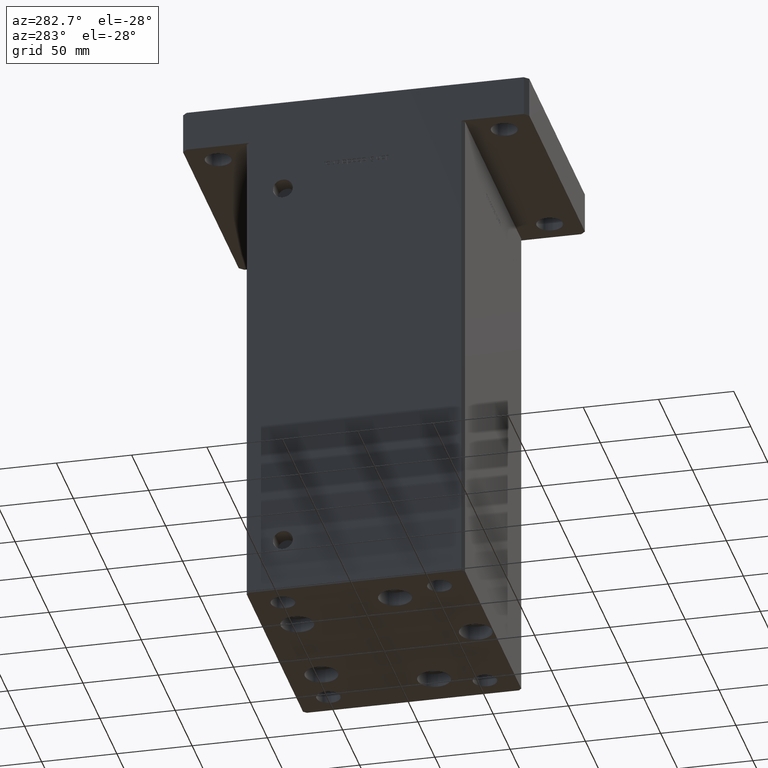
[diagram: clean part render]
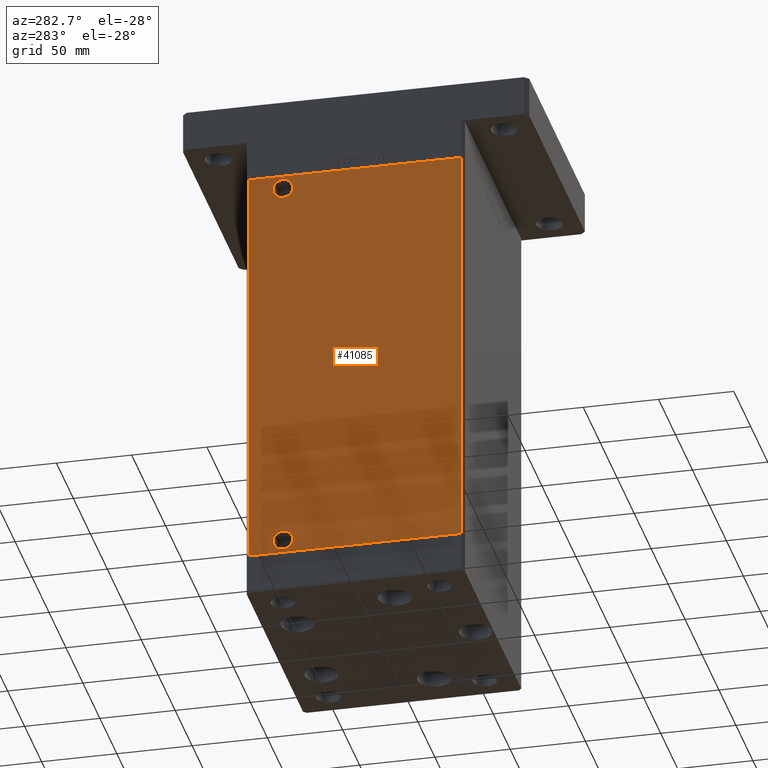
[diagram: same view with one face highlighted and labeled with its STEP entity id]
A machine part, auxiliary view. The second image highlights one B-rep face of the part: STEP entity #41085.
In plain terms, the highlighted planar face has unit normal (1, 0, 0).
Its self-contained STEP definition (entity closure, byte-faithful):
#1033 = CARTESIAN_POINT ( 'NONE',  ( -84.99999999999998579, -70.50000000000001421, 276.0000000000000000 ) ) ;
#2110 = CARTESIAN_POINT ( 'NONE',  ( -85.00000000000001421, 47.99999999999997868, 9.000000000000000000 ) ) ;
#2313 = AXIS2_PLACEMENT_3D ( 'NONE', #50869, #9428, #25958 ) ;
#2767 = CARTESIAN_POINT ( 'NONE',  ( -85.00000000000001421, 70.49999999999998579, 276.0000000000000000 ) ) ;
#4739 = EDGE_CURVE ( 'NONE', #18350, #34854, #7813, .T. ) ;
#6380 = EDGE_CURVE ( 'NONE', #25486, #42148, #25678, .T. ) ;
#6918 = CARTESIAN_POINT ( 'NONE',  ( -85.00000000000001421, 47.99999999999997868, 9.000000000000000000 ) ) ;
#7591 = CARTESIAN_POINT ( 'NONE',  ( -85.00000000000001421, 70.49999999999998579, 0.000000000000000000 ) ) ;
#7813 = CIRCLE ( 'NONE', #38098, 6.580000000000044480 ) ;
#8117 = EDGE_LOOP ( 'NONE', ( #8902, #25226 ) ) ;
#8902 = ORIENTED_EDGE ( 'NONE', *, *, #24712, .F. ) ;
#9428 = DIRECTION ( 'NONE',  ( -1.000000000000000000, -2.275047181608927644E-16, 0.000000000000000000 ) ) ;
#9489 = EDGE_CURVE ( 'NONE', #32770, #44195, #40084, .T. ) ;
#10070 = CARTESIAN_POINT ( 'NONE',  ( -85.00000000000001421, 41.41999999999993776, 267.0000000000000000 ) ) ;
#11217 = CARTESIAN_POINT ( 'NONE',  ( -84.99999999999998579, -70.50000000000001421, 0.000000000000000000 ) ) ;
#12359 = ORIENTED_EDGE ( 'NONE', *, *, #6380, .F. ) ;
#12447 = ORIENTED_EDGE ( 'NONE', *, *, #46844, .F. ) ;
#13492 = VERTEX_POINT ( 'NONE', #14404 ) ;
#13594 = LINE ( 'NONE', #47168, #41408 ) ;
#13987 = CARTESIAN_POINT ( 'NONE',  ( -85.00000000000001421, 41.41999999999998039, 9.000000000000000000 ) ) ;
#14037 = DIRECTION ( 'NONE',  ( -1.000000000000000000, -2.275047181608927644E-16, 0.000000000000000000 ) ) ;
#14404 = CARTESIAN_POINT ( 'NONE',  ( -85.00000000000001421, 70.49999999999998579, 276.0000000000000000 ) ) ;
#14429 = DIRECTION ( 'NONE',  ( 1.000000000000000000, 1.968480540115525417E-16, -0.000000000000000000 ) ) ;
#14903 = VECTOR ( 'NONE', #21900, 1000.000000000000000 ) ;
#18350 = VERTEX_POINT ( 'NONE', #35714 ) ;
#19092 = VECTOR ( 'NONE', #25394, 1000.000000000000000 ) ;
#19789 = CIRCLE ( 'NONE', #35322, 6.580000000000002736 ) ;
#20834 = ORIENTED_EDGE ( 'NONE', *, *, #33957, .F. ) ;
#21900 = DIRECTION ( 'NONE',  ( -0.000000000000000000, -0.000000000000000000, -1.000000000000000000 ) ) ;
#23093 = DIRECTION ( 'NONE',  ( -0.000000000000000000, -0.000000000000000000, -1.000000000000000000 ) ) ;
#24712 = EDGE_CURVE ( 'NONE', #34854, #18350, #49003, .T. ) ;
#25226 = ORIENTED_EDGE ( 'NONE', *, *, #4739, .F. ) ;
#25394 = DIRECTION ( 'NONE',  ( 1.968480540115525664E-16, -1.000000000000000000, 0.000000000000000000 ) ) ;
#25486 = VERTEX_POINT ( 'NONE', #33447 ) ;
#25678 = LINE ( 'NONE', #1033, #14903 ) ;
#25789 = DIRECTION ( 'NONE',  ( 1.968480540115525664E-16, -1.000000000000000000, 0.000000000000000000 ) ) ;
#25958 = DIRECTION ( 'NONE',  ( 0.000000000000000000, -1.000000000000000000, 0.000000000000000000 ) ) ;
#26137 = DIRECTION ( 'NONE',  ( -1.000000000000000000, -2.275047181608927644E-16, 0.000000000000000000 ) ) ;
#26981 = DIRECTION ( 'NONE',  ( -1.000000000000000000, -2.275047181608927644E-16, 0.000000000000000000 ) ) ;
#30688 = DIRECTION ( 'NONE',  ( -1.968480540115525417E-16, 1.000000000000000000, 0.000000000000000000 ) ) ;
#31349 = DIRECTION ( 'NONE',  ( 0.000000000000000000, -1.000000000000000000, 0.000000000000000000 ) ) ;
#32770 = VERTEX_POINT ( 'NONE', #13987 ) ;
#32879 = FACE_BOUND ( 'NONE', #8117, .T. ) ;
#33447 = CARTESIAN_POINT ( 'NONE',  ( -84.99999999999998579, -70.50000000000001421, 276.0000000000000000 ) ) ;
#33957 = EDGE_CURVE ( 'NONE', #13492, #25486, #13594, .T. ) ;
#34265 = DIRECTION ( 'NONE',  ( 0.000000000000000000, -1.000000000000000000, 0.000000000000000000 ) ) ;
#34645 = ORIENTED_EDGE ( 'NONE', *, *, #51740, .T. ) ;
#34854 = VERTEX_POINT ( 'NONE', #10070 ) ;
#35322 = AXIS2_PLACEMENT_3D ( 'NONE', #2110, #14037, #31349 ) ;
#35596 = EDGE_LOOP ( 'NONE', ( #47588, #12447 ) ) ;
#35714 = CARTESIAN_POINT ( 'NONE',  ( -85.00000000000001421, 54.58000000000002672, 267.0000000000000000 ) ) ;
#35812 = LINE ( 'NONE', #2767, #50896 ) ;
#38098 = AXIS2_PLACEMENT_3D ( 'NONE', #46711, #26137, #34265 ) ;
#38150 = CARTESIAN_POINT ( 'NONE',  ( -85.00000000000001421, 54.57999999999998408, 9.000000000000000000 ) ) ;
#38813 = FACE_OUTER_BOUND ( 'NONE', #45415, .T. ) ;
#40084 = CIRCLE ( 'NONE', #53032, 6.580000000000002736 ) ;
#41085 = ADVANCED_FACE ( 'NONE', ( #53436, #32879, #38813 ), #42321, .F. ) ;
#41408 = VECTOR ( 'NONE', #25789, 1000.000000000000000 ) ;
#41896 = LINE ( 'NONE', #46499, #19092 ) ;
#41952 = ORIENTED_EDGE ( 'NONE', *, *, #46226, .T. ) ;
#42148 = VERTEX_POINT ( 'NONE', #11217 ) ;
#42321 = PLANE ( 'NONE',  #46481 ) ;
#43481 = DIRECTION ( 'NONE',  ( 0.000000000000000000, -1.000000000000000000, 0.000000000000000000 ) ) ;
#44195 = VERTEX_POINT ( 'NONE', #38150 ) ;
#45415 = EDGE_LOOP ( 'NONE', ( #34645, #12359, #20834, #41952 ) ) ;
#46226 = EDGE_CURVE ( 'NONE', #13492, #51335, #35812, .T. ) ;
#46481 = AXIS2_PLACEMENT_3D ( 'NONE', #47462, #14429, #30688 ) ;
#46499 = CARTESIAN_POINT ( 'NONE',  ( -85.00000000000001421, 70.49999999999998579, 0.000000000000000000 ) ) ;
#46711 = CARTESIAN_POINT ( 'NONE',  ( -85.00000000000001421, 47.99999999999997868, 267.0000000000000000 ) ) ;
#46844 = EDGE_CURVE ( 'NONE', #44195, #32770, #19789, .T. ) ;
#47168 = CARTESIAN_POINT ( 'NONE',  ( -85.00000000000001421, 70.49999999999998579, 276.0000000000000000 ) ) ;
#47462 = CARTESIAN_POINT ( 'NONE',  ( -85.00000000000001421, 70.49999999999998579, 276.0000000000000000 ) ) ;
#47588 = ORIENTED_EDGE ( 'NONE', *, *, #9489, .F. ) ;
#49003 = CIRCLE ( 'NONE', #2313, 6.580000000000044480 ) ;
#50869 = CARTESIAN_POINT ( 'NONE',  ( -85.00000000000001421, 47.99999999999997868, 267.0000000000000000 ) ) ;
#50896 = VECTOR ( 'NONE', #23093, 1000.000000000000000 ) ;
#51335 = VERTEX_POINT ( 'NONE', #7591 ) ;
#51740 = EDGE_CURVE ( 'NONE', #51335, #42148, #41896, .T. ) ;
#53032 = AXIS2_PLACEMENT_3D ( 'NONE', #6918, #26981, #43481 ) ;
#53436 = FACE_BOUND ( 'NONE', #35596, .T. ) ;